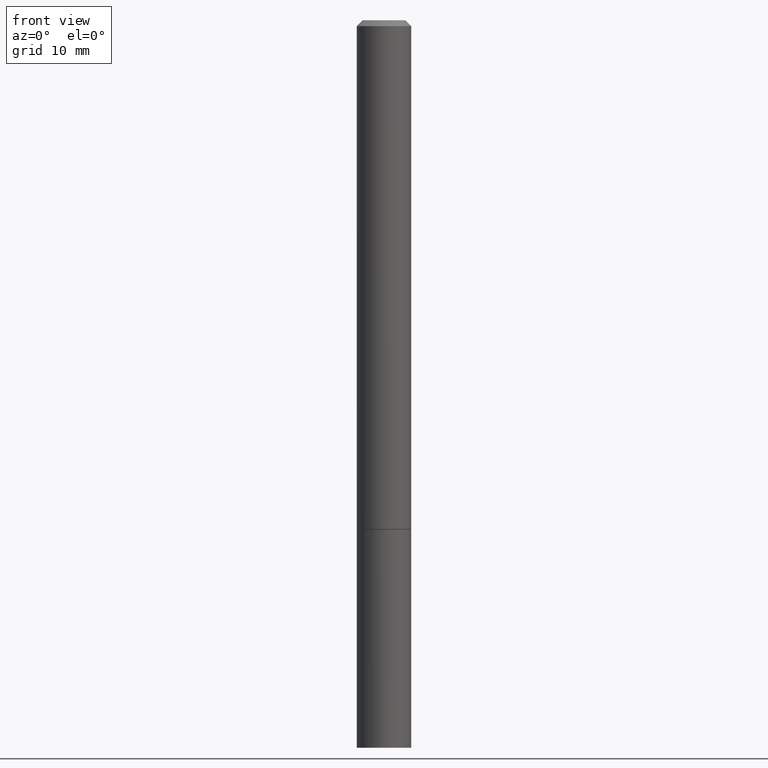
[diagram: clean part render]
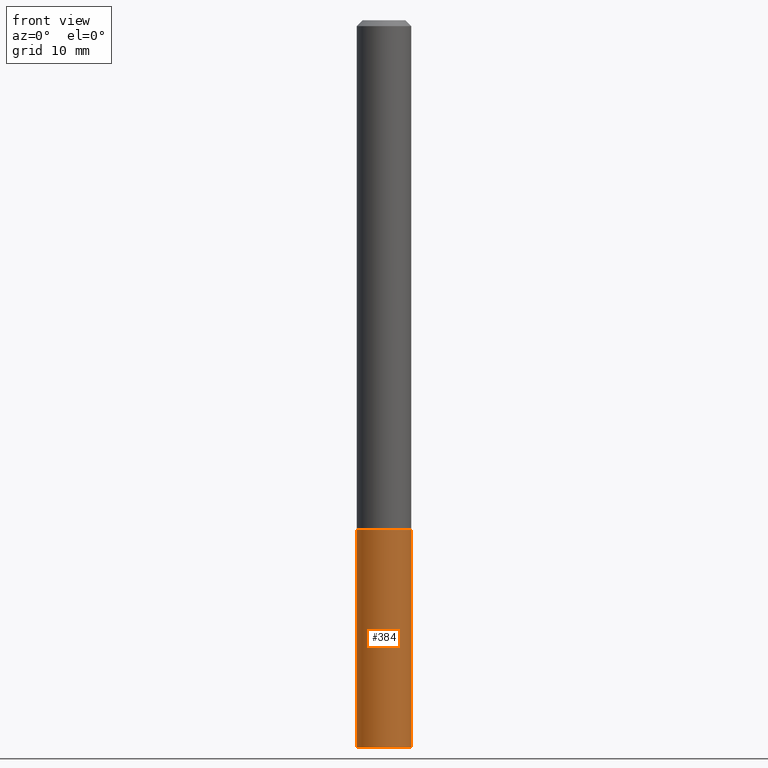
[diagram: same view with one face highlighted and labeled with its STEP entity id]
A machine part, front view. The second image highlights one B-rep face of the part: STEP entity #384.
In plain terms, the highlighted cylindrical surface (edge-blend (fillet) strip) has radius 2.3813 mm, axis along (-0, 0, 1).
Its self-contained STEP definition (entity closure, byte-faithful):
#3 = EDGE_LOOP ( 'NONE', ( #315, #143, #354, #187 ) ) ;
#16 = EDGE_CURVE ( 'NONE', #321, #268, #226, .T. ) ;
#18 = DIRECTION ( 'NONE',  ( -2.445468806185136597E-29, 3.491481338843145583E-15, 1.000000000000000000 ) ) ;
#36 = DIRECTION ( 'NONE',  ( 1.000000000000000000, -6.982962677686261189E-15, 0.000000000000000000 ) ) ;
#63 = DIRECTION ( 'NONE',  ( 1.000000000000000000, -6.982962677686272233E-15, 0.000000000000000000 ) ) ;
#69 = CIRCLE ( 'NONE', #185, 0.09375000000000001388 ) ;
#74 = CARTESIAN_POINT ( 'NONE',  ( -0.09374999999999984734, -8.074050596074776650E-15, -2.500000000000000000 ) ) ;
#77 = FACE_OUTER_BOUND ( 'NONE', #3, .T. ) ;
#94 = CARTESIAN_POINT ( 'NONE',  ( 4.279570410823989044E-29, -6.110092342975505460E-15, -1.750000000000000222 ) ) ;
#105 = EDGE_CURVE ( 'NONE', #321, #260, #291, .T. ) ;
#128 = EDGE_CURVE ( 'NONE', #268, #336, #177, .T. ) ;
#130 = DIRECTION ( 'NONE',  ( -2.445468806185136597E-29, 3.491481338843145583E-15, 1.000000000000000000 ) ) ;
#143 = ORIENTED_EDGE ( 'NONE', *, *, #16, .T. ) ;
#145 = CARTESIAN_POINT ( 'NONE',  ( 0.09375000000000001388, -6.546527510330875041E-16, 4.571415727308690506E-30 ) ) ;
#162 = CARTESIAN_POINT ( 'NONE',  ( -0.09375000000000001388, -6.753264030266591277E-15, -1.750000000000000222 ) ) ;
#168 = EDGE_CURVE ( 'NONE', #260, #336, #69, .T. ) ;
#177 = LINE ( 'NONE', #145, #259 ) ;
#178 = AXIS2_PLACEMENT_3D ( 'NONE', #227, #18, #345 ) ;
#179 = DIRECTION ( 'NONE',  ( -2.445468806185136597E-29, 3.491481338843145583E-15, 1.000000000000000000 ) ) ;
#185 = AXIS2_PLACEMENT_3D ( 'NONE', #94, #130, #36 ) ;
#187 = ORIENTED_EDGE ( 'NONE', *, *, #168, .F. ) ;
#188 = CARTESIAN_POINT ( 'NONE',  ( 0.09375000000000001388, -6.764745094008592175E-15, -1.750000000000000222 ) ) ;
#204 = CARTESIAN_POINT ( 'NONE',  ( -0.09375000000000001388, 6.661338147750940229E-16, -4.611501647113973995E-30 ) ) ;
#205 = DIRECTION ( 'NONE',  ( -2.445468806185136877E-29, 3.491481338843145188E-15, 1.000000000000000000 ) ) ;
#226 = CIRCLE ( 'NONE', #267, 0.09375000000000001388 ) ;
#227 = CARTESIAN_POINT ( 'NONE',  ( 0.000000000000000000, 0.000000000000000000, 0.000000000000000000 ) ) ;
#241 = CARTESIAN_POINT ( 'NONE',  ( 0.09374999999999984734, -9.371875034398942871E-15, -2.500000000000000000 ) ) ;
#259 = VECTOR ( 'NONE', #263, 39.37007874015748143 ) ;
#260 = VERTEX_POINT ( 'NONE', #162 ) ;
#263 = DIRECTION ( 'NONE',  ( -2.445468806185136877E-29, 3.491481338843145188E-15, 1.000000000000000000 ) ) ;
#267 = AXIS2_PLACEMENT_3D ( 'NONE', #359, #179, #63 ) ;
#268 = VERTEX_POINT ( 'NONE', #241 ) ;
#291 = LINE ( 'NONE', #204, #310 ) ;
#310 = VECTOR ( 'NONE', #205, 39.37007874015748143 ) ;
#315 = ORIENTED_EDGE ( 'NONE', *, *, #105, .F. ) ;
#321 = VERTEX_POINT ( 'NONE', #74 ) ;
#336 = VERTEX_POINT ( 'NONE', #188 ) ;
#345 = DIRECTION ( 'NONE',  ( 1.000000000000000000, -6.982962677686265922E-15, 4.876176775795935793E-29 ) ) ;
#354 = ORIENTED_EDGE ( 'NONE', *, *, #128, .T. ) ;
#359 = CARTESIAN_POINT ( 'NONE',  ( 6.113672015462842613E-29, -8.728703347107864943E-15, -2.500000000000000000 ) ) ;
#369 = CYLINDRICAL_SURFACE ( 'NONE', #178, 0.09375000000000001388 ) ;
#384 = ADVANCED_FACE ( 'NONE', ( #77 ), #369, .T. ) ;